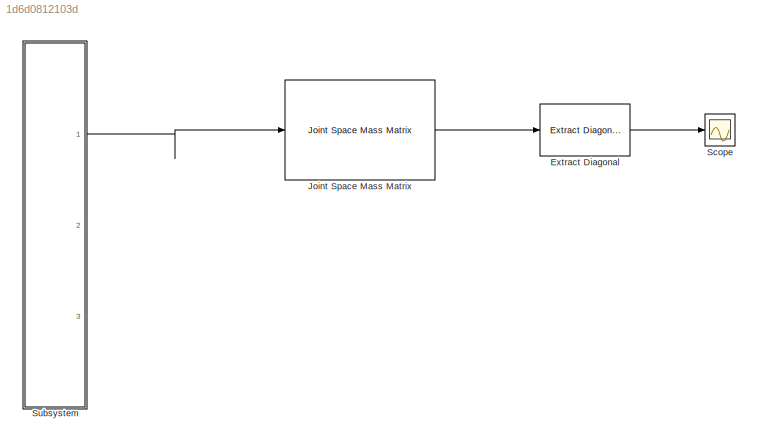
MODEL slx_1d6d0812103d
KIND model
CONFIG AbsTol = auto
CONFIG EnableMultiTasking = off
CONFIG FixedStep = auto
CONFIG MaxStep = auto
CONFIG MinStep = auto
CONFIG RelTol = 1e-3
CONFIG SampleTimeConstraint = Unconstrained
CONFIG Solver = VariableStepAuto
CONFIG SolverName = VariableStepAuto
CONFIG StartTime = 0.0
CONFIG StopTime = 10.0
BLOCK [Reference] Extract Diagonal  REF=dspmtrx3/Extract Diagonal
  Ports = [1, 1]
  SourceBlock = dspmtrx3/Extract Diagonal
  SourceProductBaseCode = DS
  SourceProductName = DSP System Toolbox
  SourceType = Extract Diagonal
BLOCK [Reference] Joint Space Mass Matrix  REF=robotmaniplib/Joint Space Mass Matrix
  Ports = [1, 1]
  SourceBlock = robotmaniplib/Joint Space Mass Matrix
  SourceProductBaseCode = RO
  SourceProductName = Robotics System Toolbox
  SourceType = Joint Space Mass Matrix
BLOCK [Scope] Scope
  Floating = off
  NumInputPorts = 1
  Ports = [1]
  ScopeSpecificationString = Simulink.scopes.TimeScopeBlockCfg('CurrentConfiguration', extmgr.ConfigurationSet(extmgr.Configuration('Core','General UI',true),extmgr.Configuration('Core','Source UI',true),extmgr.Configuration('Sources','WiredSimulink',true),extmgr.Configuration('Visuals','Time Domain',true,'SerializedDisplays',{struct('MinYLimReal','-0.06734','MaxYLimReal','0.05996','YLabelReal','','MinYLimMag','0.00000','MaxY...<+1698ch>
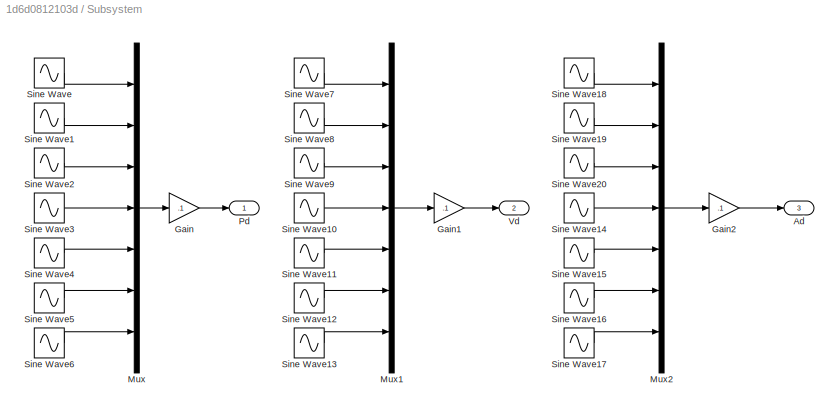
BLOCK [SubSystem] Subsystem
  Ports = [0, 3]
  RequestExecContextInheritance = off
BLOCK [Outport] Subsystem/Ad 
  IconDisplay = Port number
  Port = 3
  VectorParamsAs1DForOutWhenUnconnected = off
BLOCK [Gain] Subsystem/Gain
  Gain = .1
  OutDataTypeStr = Inherit: Inherit via internal rule
  ParamDataTypeStr = Inherit: Inherit via internal rule
  SaturateOnIntegerOverflow = off
BLOCK [Gain] Subsystem/Gain1
  Gain = .1
  OutDataTypeStr = Inherit: Inherit via internal rule
  ParamDataTypeStr = Inherit: Inherit via internal rule
  SaturateOnIntegerOverflow = off
BLOCK [Gain] Subsystem/Gain2
  Gain = .1
  OutDataTypeStr = Inherit: Inherit via internal rule
  ParamDataTypeStr = Inherit: Inherit via internal rule
  SaturateOnIntegerOverflow = off
BLOCK [Mux] Subsystem/Mux
  DisplayOption = bar
  Inputs = 7
  Ports = [7, 1]
BLOCK [Mux] Subsystem/Mux1
  DisplayOption = bar
  Inputs = 7
  Ports = [7, 1]
BLOCK [Mux] Subsystem/Mux2
  DisplayOption = bar
  Inputs = 7
  Ports = [7, 1]
BLOCK [Outport] Subsystem/Pd 
  IconDisplay = Port number
  VectorParamsAs1DForOutWhenUnconnected = off
BLOCK [Sin] Subsystem/Sine Wave
  Amplitude = 7
  Ports = [0, 1]
  SampleTime = 0
BLOCK [Sin] Subsystem/Sine Wave1
  Amplitude = 6
  Ports = [0, 1]
  SampleTime = 0
BLOCK [Sin] Subsystem/Sine Wave10
  Amplitude = 4
  Phase = pi/2
  Ports = [0, 1]
  SampleTime = 0
BLOCK [Sin] Subsystem/Sine Wave11
  Amplitude = 3
  Phase = pi/2
  Ports = [0, 1]
  SampleTime = 0
BLOCK [Sin] Subsystem/Sine Wave12
  Amplitude = 2
  Phase = pi/2
  Ports = [0, 1]
  SampleTime = 0
BLOCK [Sin] Subsystem/Sine Wave13
  Phase = pi/2
  Ports = [0, 1]
  SampleTime = 0
BLOCK [Sin] Subsystem/Sine Wave14
  Amplitude = 4
  Phase = pi
  Ports = [0, 1]
  SampleTime = 0
BLOCK [Sin] Subsystem/Sine Wave15
  Amplitude = 3
  Phase = pi
  Ports = [0, 1]
  SampleTime = 0
BLOCK [Sin] Subsystem/Sine Wave16
  Amplitude = 2
  Phase = pi
  Ports = [0, 1]
  SampleTime = 0
BLOCK [Sin] Subsystem/Sine Wave17
  Phase = pi
  Ports = [0, 1]
  SampleTime = 0
BLOCK [Sin] Subsystem/Sine Wave18
  Amplitude = 7
  Phase = pi
  Ports = [0, 1]
  SampleTime = 0
BLOCK [Sin] Subsystem/Sine Wave19
  Amplitude = 6
  Phase = pi
  Ports = [0, 1]
  SampleTime = 0
BLOCK [Sin] Subsystem/Sine Wave2
  Amplitude = 5
  Ports = [0, 1]
  SampleTime = 0
BLOCK [Sin] Subsystem/Sine Wave20
  Amplitude = 5
  Phase = pi
  Ports = [0, 1]
  SampleTime = 0
BLOCK [Sin] Subsystem/Sine Wave3
  Amplitude = 4
  Ports = [0, 1]
  SampleTime = 0
BLOCK [Sin] Subsystem/Sine Wave4
  Amplitude = 3
  Ports = [0, 1]
  SampleTime = 0
BLOCK [Sin] Subsystem/Sine Wave5
  Amplitude = 2
  Ports = [0, 1]
  SampleTime = 0
BLOCK [Sin] Subsystem/Sine Wave6
  Ports = [0, 1]
  SampleTime = 0
BLOCK [Sin] Subsystem/Sine Wave7
  Amplitude = 7
  Phase = pi/2
  Ports = [0, 1]
  SampleTime = 0
BLOCK [Sin] Subsystem/Sine Wave8
  Amplitude = 6
  Phase = pi/2
  Ports = [0, 1]
  SampleTime = 0
BLOCK [Sin] Subsystem/Sine Wave9
  Amplitude = 5
  Phase = pi/2
  Ports = [0, 1]
  SampleTime = 0
BLOCK [Outport] Subsystem/Vd 
  IconDisplay = Port number
  Port = 2
  VectorParamsAs1DForOutWhenUnconnected = off
LINE Extract Diagonal:1 -> Scope:1
LINE Joint Space Mass Matrix:1 -> Extract Diagonal:1
LINE Subsystem/Gain1:1 -> Subsystem/Vd :1
LINE Subsystem/Gain2:1 -> Subsystem/Ad :1
LINE Subsystem/Gain:1 -> Subsystem/Pd :1
LINE Subsystem/Mux1:1 -> Subsystem/Gain1:1
LINE Subsystem/Mux2:1 -> Subsystem/Gain2:1
LINE Subsystem/Mux:1 -> Subsystem/Gain:1
LINE Subsystem/Sine Wave10:1 -> Subsystem/Mux1:4
LINE Subsystem/Sine Wave11:1 -> Subsystem/Mux1:5
LINE Subsystem/Sine Wave12:1 -> Subsystem/Mux1:6
LINE Subsystem/Sine Wave13:1 -> Subsystem/Mux1:7
LINE Subsystem/Sine Wave14:1 -> Subsystem/Mux2:4
LINE Subsystem/Sine Wave15:1 -> Subsystem/Mux2:5
LINE Subsystem/Sine Wave16:1 -> Subsystem/Mux2:6
LINE Subsystem/Sine Wave17:1 -> Subsystem/Mux2:7
LINE Subsystem/Sine Wave18:1 -> Subsystem/Mux2:1
LINE Subsystem/Sine Wave19:1 -> Subsystem/Mux2:2
LINE Subsystem/Sine Wave1:1 -> Subsystem/Mux:2
LINE Subsystem/Sine Wave20:1 -> Subsystem/Mux2:3
LINE Subsystem/Sine Wave2:1 -> Subsystem/Mux:3
LINE Subsystem/Sine Wave3:1 -> Subsystem/Mux:4
LINE Subsystem/Sine Wave4:1 -> Subsystem/Mux:5
LINE Subsystem/Sine Wave5:1 -> Subsystem/Mux:6
LINE Subsystem/Sine Wave6:1 -> Subsystem/Mux:7
LINE Subsystem/Sine Wave7:1 -> Subsystem/Mux1:1
LINE Subsystem/Sine Wave8:1 -> Subsystem/Mux1:2
LINE Subsystem/Sine Wave9:1 -> Subsystem/Mux1:3
LINE Subsystem/Sine Wave:1 -> Subsystem/Mux:1
LINE Subsystem:1 -> Joint Space Mass Matrix:1
